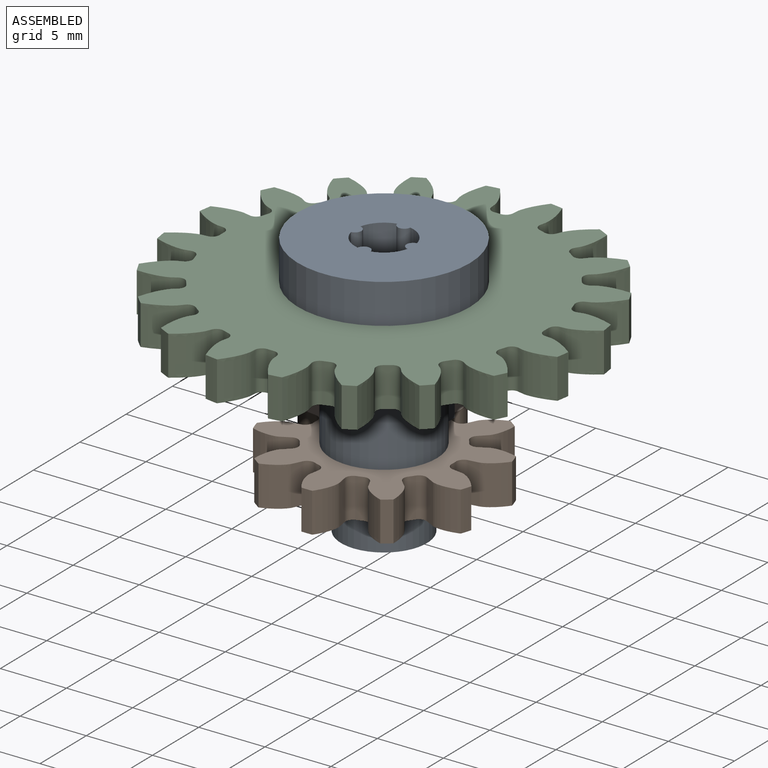
[diagram: assembled view]
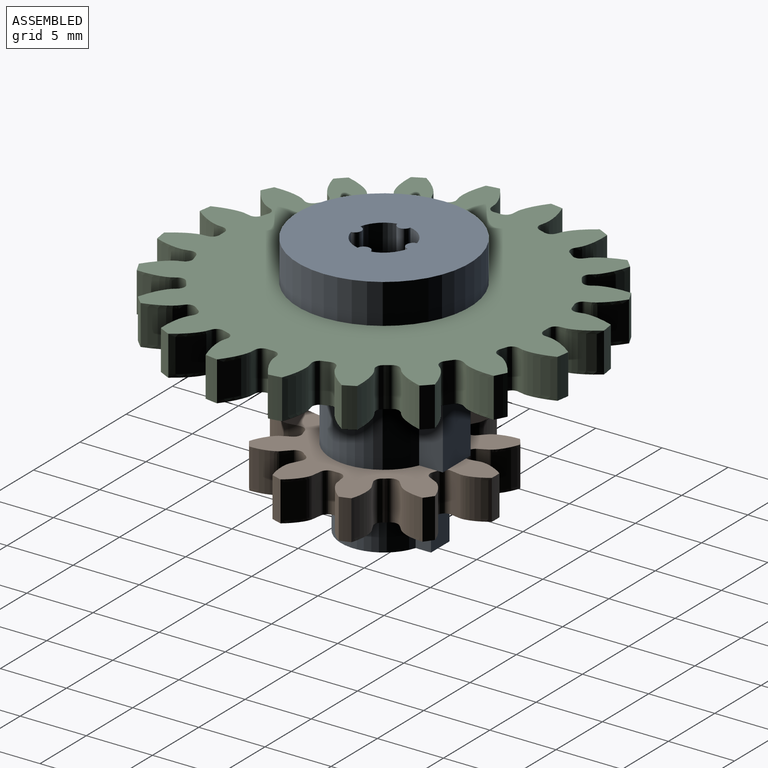
[diagram: assembled view, second angle]
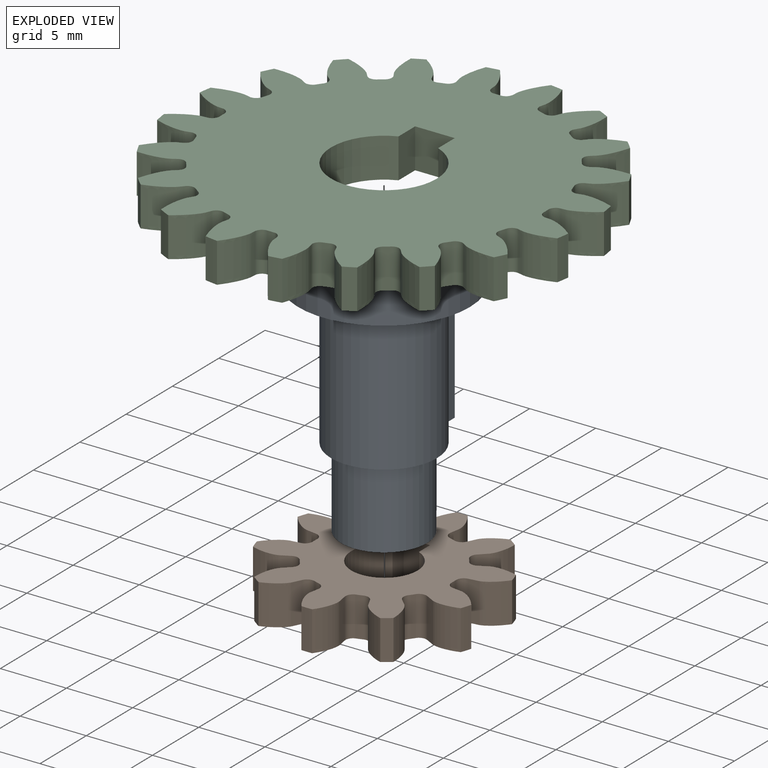
[diagram: exploded view]
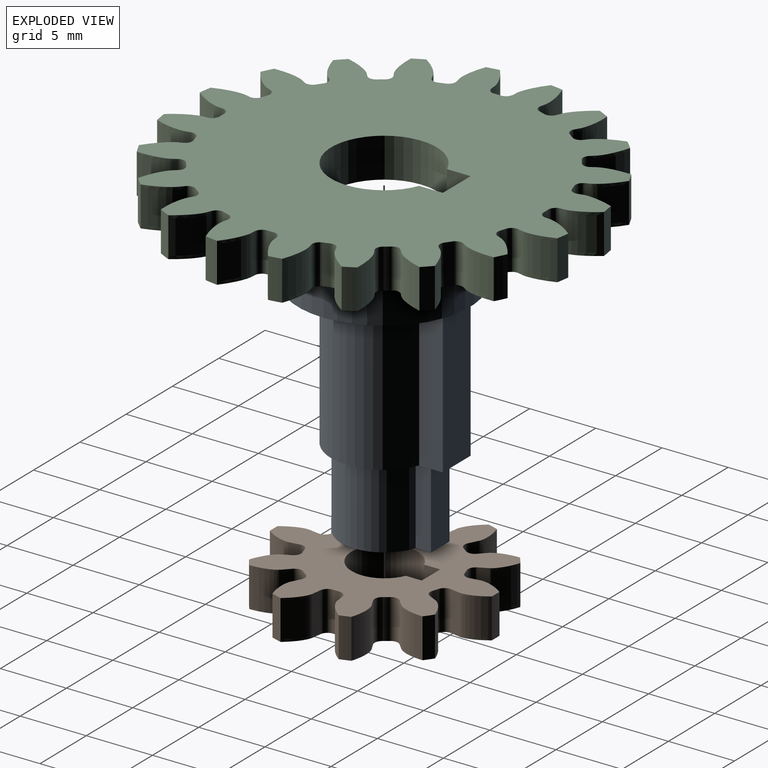
[diagram: exploded view, second angle]
ASSEMBLY  parts=3 mates=2
PART A: 21 faces, bbox 13x13x20 mm
  f0: plane 13x13mm, normal (0,0,1), area 119mm2, adj f8,f13,f14,f15,f16,f17,f18,f19
  f1: plane 7.5x6.5mm, normal (0,0,-1), area 21.6mm2, adj f9,f10,f11,f12,f13,f14,f15,f16
  f2: plane 9.5x8mm, normal (0,0,-1), area 19.8mm2, adj f3,f4,f5,f6,f9,f10,f11,f12
  f3: plane 11x1.79mm, normal (-1,0,0), area 19.7mm2, adj f2,f4,f6,f7
  f4: cylinder r=4mm len=11mm, axis (0,0,-1), area 242.6mm2, adj f2,f3,f5,f7
  f5: plane 11x1.79mm, normal (1,0,0), area 19.7mm2, adj f2,f4,f6,f7
  f6: plane 11x3mm, normal (0,1,0), area 33mm2, adj f2,f3,f5,f7
  f7: plane 13x13mm, normal (0,0,-1), area 77.7mm2, adj f3,f4,f5,f6,f8
  f8: cylinder r=6.5mm len=13mm, axis (0,0,-1), area 122.5mm2, adj f0,f7
  f9: cylinder r=3.25mm len=6.5mm, axis (0,0,1), area 110.3mm2, adj f1,f2,f10,f12
  f10: plane 6x1.16mm, normal (-1,0,0), area 6.9mm2, adj f1,f2,f9,f11
  f11: plane 6x2mm, normal (0,1,0), area 12mm2, adj f1,f2,f10,f12
  f12: plane 6x1.16mm, normal (1,0,0), area 6.9mm2, adj f1,f2,f9,f11
  f13: cylinder r=0.5mm len=20mm, axis (0,0,1), area 29.1mm2, adj f0,f1,f14,f20
  f14: cylinder r=2.2mm len=20mm, axis (0,0,1), area 49.1mm2, adj f0,f1,f13,f15
  f15: cylinder r=0.5mm len=20mm, axis (0,0,1), area 29.1mm2, adj f0,f1,f14,f16
  f16: cylinder r=2.2mm len=20mm, axis (0,0,1), area 49.1mm2, adj f0,f1,f15,f17
  f17: cylinder r=0.5mm len=20mm, axis (0,0,1), area 29.1mm2, adj f0,f1,f16,f18
  f18: cylinder r=2.2mm len=20mm, axis (0,0,1), area 49.1mm2, adj f0,f1,f17,f19
  f19: cylinder r=0.5mm len=20mm, axis (0,0,1), area 29.1mm2, adj f0,f1,f18,f20
  f20: cylinder r=2.2mm len=20mm, axis (0,0,1), area 49.1mm2, adj f0,f1,f13,f19
PART B: 66 faces, bbox 16.2x3x16.8 mm
  f0: cylinder r=8.4mm len=3mm, axis (0,1,0), area 2.5mm2, adj f9,f15,f56,f63
  f1: cylinder r=8.4mm len=3mm, axis (0,1,0), area 2.5mm2, adj f9,f15,f16,f58
  f2: cylinder r=8.4mm len=3mm, axis (0,1,0), area 2.5mm2, adj f9,f15,f46,f53
  f3: cylinder r=8.4mm len=3mm, axis (0,1,0), area 2.5mm2, adj f9,f15,f48,f61
  f4: cylinder r=8.4mm len=3mm, axis (0,1,0), area 2.5mm2, adj f9,f15,f36,f43
  f5: cylinder r=8.4mm len=3mm, axis (0,1,0), area 2.5mm2, adj f9,f15,f31,f38
  f6: cylinder r=8.4mm len=3mm, axis (0,1,0), area 2.5mm2, adj f9,f15,f26,f33
  f7: cylinder r=8.4mm len=3mm, axis (0,1,0), area 2.5mm2, adj f9,f15,f28,f51
  f8: cylinder r=8.4mm len=3mm, axis (0,1,0), area 2.5mm2, adj f9,f15,f23,f41
  f9: plane 16.83x16.25mm, normal (0,-1,0), area 125.5mm2, adj f0,f1,f2,f3,f4,f5,f6,f7
  f10: plane 3x1.21mm, normal (-1,0,0), area 3.6mm2, adj f9,f11,f13,f15
  f11: cylinder r=2.5mm len=5mm, axis (0,1,0), area 41mm2, adj f9,f10,f12,f15
  f12: plane 3x1.21mm, normal (1,0,0), area 3.6mm2, adj f9,f11,f13,f15
  f13: plane 3x2mm, normal (0,0,-1), area 6mm2, adj f9,f10,f12,f15
  f14: cylinder r=8.4mm len=3mm, axis (0,1,0), area 2.5mm2, adj f9,f15,f18,f21
  f15: plane 16.83x16.25mm, normal (0,1,0), area 125.5mm2, adj f0,f1,f2,f3,f4,f5,f6,f7
  f16: extruded ~3x2.37mm, area 8.5mm2, adj f1,f9,f15,f19
  f17: cylinder r=5.25mm len=3mm, axis (0,1,0), area 1.3mm2, adj f9,f15,f19,f20
  f18: extruded ~3x2.37mm, area 8.5mm2, adj f9,f14,f15,f20
  f19: cylinder r=0.58mm len=3mm, axis (0,1,0), area 2.5mm2, adj f9,f15,f16,f17
  f20: cylinder r=0.58mm len=3mm, axis (0,1,0), area 2.5mm2, adj f9,f15,f17,f18
  f21: extruded ~3x2.73mm, area 8.5mm2, adj f9,f14,f15,f24
  f22: cylinder r=5.25mm len=3mm, axis (0,1,0), area 1.3mm2, adj f9,f15,f24,f25
  f23: extruded ~3x2.51mm, area 8.5mm2, adj f8,f9,f15,f25
  f24: cylinder r=0.58mm len=3mm, axis (0,1,0), area 2.5mm2, adj f9,f15,f21,f22
  f25: cylinder r=0.58mm len=3mm, axis (0,1,0), area 2.5mm2, adj f9,f15,f22,f23
  f26: extruded ~3x2.37mm, area 8.5mm2, adj f6,f9,f15,f29
  f27: cylinder r=5.25mm len=3mm, axis (0,1,0), area 1.3mm2, adj f9,f15,f29,f30
  f28: extruded ~3x2.37mm, area 8.5mm2, adj f7,f9,f15,f30
  f29: cylinder r=0.58mm len=3mm, axis (0,1,0), area 2.5mm2, adj f9,f15,f26,f27
  f30: cylinder r=0.58mm len=3mm, axis (0,1,0), area 2.5mm2, adj f9,f15,f27,f28
  f31: extruded ~3x2.51mm, area 8.5mm2, adj f5,f9,f15,f34
  f32: cylinder r=5.25mm len=3mm, axis (0,1,0), area 1.3mm2, adj f9,f15,f34,f35
  f33: extruded ~3x2.73mm, area 8.5mm2, adj f6,f9,f15,f35
  f34: cylinder r=0.58mm len=3mm, axis (0,1,0), area 2.5mm2, adj f9,f15,f31,f32
  f35: cylinder r=0.58mm len=3mm, axis (0,1,0), area 2.5mm2, adj f9,f15,f32,f33
  f36: extruded ~3x2.68mm, area 8.5mm2, adj f4,f9,f15,f39
  f37: cylinder r=5.25mm len=3mm, axis (0,1,0), area 1.3mm2, adj f9,f15,f39,f40
  f38: extruded ~3x2.05mm, area 8.5mm2, adj f5,f9,f15,f40
  f39: cylinder r=0.58mm len=3mm, axis (0,1,0), area 2.5mm2, adj f9,f15,f36,f37
  f40: cylinder r=0.58mm len=3mm, axis (0,1,0), area 2.5mm2, adj f9,f15,f37,f38
  f41: extruded ~3x2.05mm, area 8.5mm2, adj f8,f9,f15,f44
  f42: cylinder r=5.25mm len=3mm, axis (0,1,0), area 1.3mm2, adj f9,f15,f44,f45
  f43: extruded ~3x2.68mm, area 8.5mm2, adj f4,f9,f15,f45
  f44: cylinder r=0.58mm len=3mm, axis (0,1,0), area 2.5mm2, adj f9,f15,f41,f42
  f45: cylinder r=0.58mm len=3mm, axis (0,1,0), area 2.5mm2, adj f9,f15,f42,f43
  f46: extruded ~3x2.05mm, area 8.5mm2, adj f2,f9,f15,f49
  f47: cylinder r=5.25mm len=3mm, axis (0,1,0), area 1.3mm2, adj f9,f15,f49,f50
  f48: extruded ~3x2.68mm, area 8.5mm2, adj f3,f9,f15,f50
  f49: cylinder r=0.58mm len=3mm, axis (0,1,0), area 2.5mm2, adj f9,f15,f46,f47
  f50: cylinder r=0.58mm len=3mm, axis (0,1,0), area 2.5mm2, adj f9,f15,f47,f48
  f51: extruded ~3x2.73mm, area 8.5mm2, adj f7,f9,f15,f54
  f52: cylinder r=5.25mm len=3mm, axis (0,1,0), area 1.3mm2, adj f9,f15,f54,f55
  f53: extruded ~3x2.51mm, area 8.5mm2, adj f2,f9,f15,f55
  f54: cylinder r=0.58mm len=3mm, axis (0,1,0), area 2.5mm2, adj f9,f15,f51,f52
  f55: cylinder r=0.58mm len=3mm, axis (0,1,0), area 2.5mm2, adj f9,f15,f52,f53
  f56: extruded ~3x2.51mm, area 8.5mm2, adj f0,f9,f15,f59
  f57: cylinder r=5.25mm len=3mm, axis (0,1,0), area 1.3mm2, adj f9,f15,f59,f60
  f58: extruded ~3x2.73mm, area 8.5mm2, adj f1,f9,f15,f60
  f59: cylinder r=0.58mm len=3mm, axis (0,1,0), area 2.5mm2, adj f9,f15,f56,f57
  f60: cylinder r=0.58mm len=3mm, axis (0,1,0), area 2.5mm2, adj f9,f15,f57,f58
  f61: extruded ~3x2.68mm, area 8.5mm2, adj f3,f9,f15,f64
  f62: cylinder r=5.25mm len=3mm, axis (0,1,0), area 1.3mm2, adj f9,f15,f64,f65
  f63: extruded ~3x2.05mm, area 8.5mm2, adj f0,f9,f15,f65
  f64: cylinder r=0.58mm len=3mm, axis (0,1,0), area 2.5mm2, adj f9,f15,f61,f62
  f65: cylinder r=0.58mm len=3mm, axis (0,1,0), area 2.5mm2, adj f9,f15,f62,f63
PART C: 126 faces, bbox 30.6x3x30.6 mm
  f0: cylinder r=15.4mm len=3mm, axis (0,1,0), area 2.9mm2, adj f19,f25,f76,f123
  f1: cylinder r=15.4mm len=3mm, axis (0,1,0), area 2.9mm2, adj f19,f25,f118,f121
  f2: cylinder r=15.4mm len=3mm, axis (0,1,0), area 2.9mm2, adj f19,f25,f113,f116
  f3: cylinder r=15.4mm len=3mm, axis (0,1,0), area 2.9mm2, adj f19,f25,f108,f111
  f4: cylinder r=15.4mm len=3mm, axis (0,1,0), area 2.9mm2, adj f19,f25,f103,f106
  f5: cylinder r=15.4mm len=3mm, axis (0,1,0), area 2.9mm2, adj f19,f25,f98,f101
  f6: cylinder r=15.4mm len=3mm, axis (0,1,0), area 2.9mm2, adj f19,f25,f93,f96
  f7: cylinder r=15.4mm len=3mm, axis (0,1,0), area 2.9mm2, adj f19,f25,f88,f91
  f8: cylinder r=15.4mm len=3mm, axis (0,1,0), area 2.9mm2, adj f19,f25,f71,f83
  f9: cylinder r=15.4mm len=3mm, axis (0,1,0), area 2.9mm2, adj f19,f25,f78,f81
  f10: cylinder r=15.4mm len=3mm, axis (0,1,0), area 2.9mm2, adj f19,f25,f66,f73
  f11: cylinder r=15.4mm len=3mm, axis (0,1,0), area 2.9mm2, adj f19,f25,f46,f68
  f12: cylinder r=15.4mm len=3mm, axis (0,1,0), area 2.9mm2, adj f19,f25,f26,f63
  f13: cylinder r=15.4mm len=3mm, axis (0,1,0), area 2.9mm2, adj f19,f25,f58,f61
  f14: cylinder r=15.4mm len=3mm, axis (0,1,0), area 2.9mm2, adj f19,f25,f53,f56
  f15: cylinder r=15.4mm len=3mm, axis (0,1,0), area 2.9mm2, adj f19,f25,f48,f51
  f16: cylinder r=15.4mm len=3mm, axis (0,1,0), area 2.9mm2, adj f19,f25,f36,f43
  f17: cylinder r=15.4mm len=3mm, axis (0,1,0), area 2.9mm2, adj f19,f25,f38,f86
  f18: cylinder r=15.4mm len=3mm, axis (0,1,0), area 2.9mm2, adj f19,f25,f33,f41
  f19: plane 30.58x30.58mm, normal (0,-1,0), area 548.3mm2, adj f0,f1,f2,f3,f4,f5,f6,f7
  f20: plane 3x1.79mm, normal (-1,0,0), area 5.4mm2, adj f19,f21,f23,f25
  f21: cylinder r=4mm len=8mm, axis (0,1,0), area 66.2mm2, adj f19,f20,f22,f25
  f22: plane 3x1.79mm, normal (1,0,0), area 5.4mm2, adj f19,f21,f23,f25
  f23: plane 3x3mm, normal (0,0,-1), area 9mm2, adj f19,f20,f22,f25
  f24: cylinder r=15.4mm len=3mm, axis (0,1,0), area 2.9mm2, adj f19,f25,f28,f31
  f25: plane 30.58x30.58mm, normal (0,1,0), area 548.3mm2, adj f0,f1,f2,f3,f4,f5,f6,f7
  f26: extruded ~3x2.51mm, area 8.4mm2, adj f12,f19,f25,f29
  f27: cylinder r=12.25mm len=3mm, axis (0,1,0), area 1.5mm2, adj f19,f25,f29,f30
  f28: extruded ~3x2.51mm, area 8.4mm2, adj f19,f24,f25,f30
  f29: cylinder r=0.55mm len=3mm, axis (0,1,0), area 2.5mm2, adj f19,f25,f26,f27
  f30: cylinder r=0.55mm len=3mm, axis (0,1,0), area 2.5mm2, adj f19,f25,f27,f28
  f31: extruded ~3x2.73mm, area 8.4mm2, adj f19,f24,f25,f34
  f32: cylinder r=12.25mm len=3mm, axis (0,1,0), area 1.5mm2, adj f19,f25,f34,f35
  f33: extruded ~3x2.04mm, area 8.4mm2, adj f18,f19,f25,f35
  f34: cylinder r=0.55mm len=3mm, axis (0,1,0), area 2.5mm2, adj f19,f25,f31,f32
  f35: cylinder r=0.55mm len=3mm, axis (0,1,0), area 2.5mm2, adj f19,f25,f32,f33
  f36: extruded ~3x2.38mm, area 8.4mm2, adj f16,f19,f25,f39
  f37: cylinder r=12.25mm len=3mm, axis (0,1,0), area 1.5mm2, adj f19,f25,f39,f40
  f38: extruded ~3x2.69mm, area 8.4mm2, adj f17,f19,f25,f40
  f39: cylinder r=0.55mm len=3mm, axis (0,1,0), area 2.5mm2, adj f19,f25,f36,f37
  f40: cylinder r=0.55mm len=3mm, axis (0,1,0), area 2.5mm2, adj f19,f25,f37,f38
  f41: extruded ~3x2.69mm, area 8.4mm2, adj f18,f19,f25,f44
  f42: cylinder r=12.25mm len=3mm, axis (0,1,0), area 1.5mm2, adj f19,f25,f44,f45
  f43: extruded ~3x2.38mm, area 8.4mm2, adj f16,f19,f25,f45
  f44: cylinder r=0.55mm len=3mm, axis (0,1,0), area 2.5mm2, adj f19,f25,f41,f42
  f45: cylinder r=0.55mm len=3mm, axis (0,1,0), area 2.5mm2, adj f19,f25,f42,f43
  f46: extruded ~3x2.73mm, area 8.4mm2, adj f11,f19,f25,f49
  f47: cylinder r=12.25mm len=3mm, axis (0,1,0), area 1.5mm2, adj f19,f25,f49,f50
  f48: extruded ~3x2.04mm, area 8.4mm2, adj f15,f19,f25,f50
  f49: cylinder r=0.55mm len=3mm, axis (0,1,0), area 2.5mm2, adj f19,f25,f46,f47
  f50: cylinder r=0.55mm len=3mm, axis (0,1,0), area 2.5mm2, adj f19,f25,f47,f48
  f51: extruded ~3x2.69mm, area 8.4mm2, adj f15,f19,f25,f54
  f52: cylinder r=12.25mm len=3mm, axis (0,1,0), area 1.5mm2, adj f19,f25,f54,f55
  f53: extruded ~3x2.38mm, area 8.4mm2, adj f14,f19,f25,f55
  f54: cylinder r=0.55mm len=3mm, axis (0,1,0), area 2.5mm2, adj f19,f25,f51,f52
  f55: cylinder r=0.55mm len=3mm, axis (0,1,0), area 2.5mm2, adj f19,f25,f52,f53
  f56: extruded ~3x2.38mm, area 8.4mm2, adj f14,f19,f25,f59
  f57: cylinder r=12.25mm len=3mm, axis (0,1,0), area 1.5mm2, adj f19,f25,f59,f60
  f58: extruded ~3x2.69mm, area 8.4mm2, adj f13,f19,f25,f60
  f59: cylinder r=0.55mm len=3mm, axis (0,1,0), area 2.5mm2, adj f19,f25,f56,f57
  f60: cylinder r=0.55mm len=3mm, axis (0,1,0), area 2.5mm2, adj f19,f25,f57,f58
  f61: extruded ~3x2.04mm, area 8.4mm2, adj f13,f19,f25,f64
  f62: cylinder r=12.25mm len=3mm, axis (0,1,0), area 1.5mm2, adj f19,f25,f64,f65
  f63: extruded ~3x2.73mm, area 8.4mm2, adj f12,f19,f25,f65
  f64: cylinder r=0.55mm len=3mm, axis (0,1,0), area 2.5mm2, adj f19,f25,f61,f62
  f65: cylinder r=0.55mm len=3mm, axis (0,1,0), area 2.5mm2, adj f19,f25,f62,f63
  f66: extruded ~3x2.51mm, area 8.4mm2, adj f10,f19,f25,f69
  f67: cylinder r=12.25mm len=3mm, axis (0,1,0), area 1.5mm2, adj f19,f25,f69,f70
  f68: extruded ~3x2.51mm, area 8.4mm2, adj f11,f19,f25,f70
  f69: cylinder r=0.55mm len=3mm, axis (0,1,0), area 2.5mm2, adj f19,f25,f66,f67
  f70: cylinder r=0.55mm len=3mm, axis (0,1,0), area 2.5mm2, adj f19,f25,f67,f68
  f71: extruded ~3x2.04mm, area 8.4mm2, adj f8,f19,f25,f74
  f72: cylinder r=12.25mm len=3mm, axis (0,1,0), area 1.5mm2, adj f19,f25,f74,f75
  f73: extruded ~3x2.73mm, area 8.4mm2, adj f10,f19,f25,f75
  f74: cylinder r=0.55mm len=3mm, axis (0,1,0), area 2.5mm2, adj f19,f25,f71,f72
  f75: cylinder r=0.55mm len=3mm, axis (0,1,0), area 2.5mm2, adj f19,f25,f72,f73
  f76: extruded ~3x2.69mm, area 8.4mm2, adj f0,f19,f25,f79
  f77: cylinder r=12.25mm len=3mm, axis (0,1,0), area 1.5mm2, adj f19,f25,f79,f80
  f78: extruded ~3x2.38mm, area 8.4mm2, adj f9,f19,f25,f80
  f79: cylinder r=0.55mm len=3mm, axis (0,1,0), area 2.5mm2, adj f19,f25,f76,f77
  f80: cylinder r=0.55mm len=3mm, axis (0,1,0), area 2.5mm2, adj f19,f25,f77,f78
  f81: extruded ~3x2.38mm, area 8.4mm2, adj f9,f19,f25,f84
  f82: cylinder r=12.25mm len=3mm, axis (0,1,0), area 1.5mm2, adj f19,f25,f84,f85
  f83: extruded ~3x2.69mm, area 8.4mm2, adj f8,f19,f25,f85
  f84: cylinder r=0.55mm len=3mm, axis (0,1,0), area 2.5mm2, adj f19,f25,f81,f82
  f85: cylinder r=0.55mm len=3mm, axis (0,1,0), area 2.5mm2, adj f19,f25,f82,f83
  f86: extruded ~3x2.04mm, area 8.4mm2, adj f17,f19,f25,f89
  f87: cylinder r=12.25mm len=3mm, axis (0,1,0), area 1.5mm2, adj f19,f25,f89,f90
  f88: extruded ~3x2.73mm, area 8.4mm2, adj f7,f19,f25,f90
  f89: cylinder r=0.55mm len=3mm, axis (0,1,0), area 2.5mm2, adj f19,f25,f86,f87
  f90: cylinder r=0.55mm len=3mm, axis (0,1,0), area 2.5mm2, adj f19,f25,f87,f88
  f91: extruded ~3x2.51mm, area 8.4mm2, adj f7,f19,f25,f94
  f92: cylinder r=12.25mm len=3mm, axis (0,1,0), area 1.5mm2, adj f19,f25,f94,f95
  f93: extruded ~3x2.51mm, area 8.4mm2, adj f6,f19,f25,f95
  f94: cylinder r=0.55mm len=3mm, axis (0,1,0), area 2.5mm2, adj f19,f25,f91,f92
  f95: cylinder r=0.55mm len=3mm, axis (0,1,0), area 2.5mm2, adj f19,f25,f92,f93
  f96: extruded ~3x2.73mm, area 8.4mm2, adj f6,f19,f25,f99
  f97: cylinder r=12.25mm len=3mm, axis (0,1,0), area 1.5mm2, adj f19,f25,f99,f100
  f98: extruded ~3x2.04mm, area 8.4mm2, adj f5,f19,f25,f100
  f99: cylinder r=0.55mm len=3mm, axis (0,1,0), area 2.5mm2, adj f19,f25,f96,f97
  f100: cylinder r=0.55mm len=3mm, axis (0,1,0), area 2.5mm2, adj f19,f25,f97,f98
  f101: extruded ~3x2.69mm, area 8.4mm2, adj f5,f19,f25,f104
  f102: cylinder r=12.25mm len=3mm, axis (0,1,0), area 1.5mm2, adj f19,f25,f104,f105
  f103: extruded ~3x2.38mm, area 8.4mm2, adj f4,f19,f25,f105
  f104: cylinder r=0.55mm len=3mm, axis (0,1,0), area 2.5mm2, adj f19,f25,f101,f102
  f105: cylinder r=0.55mm len=3mm, axis (0,1,0), area 2.5mm2, adj f19,f25,f102,f103
  f106: extruded ~3x2.38mm, area 8.4mm2, adj f4,f19,f25,f109
  f107: cylinder r=12.25mm len=3mm, axis (0,1,0), area 1.5mm2, adj f19,f25,f109,f110
  f108: extruded ~3x2.69mm, area 8.4mm2, adj f3,f19,f25,f110
  f109: cylinder r=0.55mm len=3mm, axis (0,1,0), area 2.5mm2, adj f19,f25,f106,f107
  f110: cylinder r=0.55mm len=3mm, axis (0,1,0), area 2.5mm2, adj f19,f25,f107,f108
  f111: extruded ~3x2.04mm, area 8.4mm2, adj f3,f19,f25,f114
  f112: cylinder r=12.25mm len=3mm, axis (0,1,0), area 1.5mm2, adj f19,f25,f114,f115
  f113: extruded ~3x2.73mm, area 8.4mm2, adj f2,f19,f25,f115
  f114: cylinder r=0.55mm len=3mm, axis (0,1,0), area 2.5mm2, adj f19,f25,f111,f112
  f115: cylinder r=0.55mm len=3mm, axis (0,1,0), area 2.5mm2, adj f19,f25,f112,f113
  f116: extruded ~3x2.51mm, area 8.4mm2, adj f2,f19,f25,f119
  f117: cylinder r=12.25mm len=3mm, axis (0,1,0), area 1.5mm2, adj f19,f25,f119,f120
  f118: extruded ~3x2.51mm, area 8.4mm2, adj f1,f19,f25,f120
  f119: cylinder r=0.55mm len=3mm, axis (0,1,0), area 2.5mm2, adj f19,f25,f116,f117
  f120: cylinder r=0.55mm len=3mm, axis (0,1,0), area 2.5mm2, adj f19,f25,f117,f118
  f121: extruded ~3x2.73mm, area 8.4mm2, adj f1,f19,f25,f124
  f122: cylinder r=12.25mm len=3mm, axis (0,1,0), area 1.5mm2, adj f19,f25,f124,f125
  f123: extruded ~3x2.04mm, area 8.4mm2, adj f0,f19,f25,f125
  f124: cylinder r=0.55mm len=3mm, axis (0,1,0), area 2.5mm2, adj f19,f25,f121,f122
  f125: cylinder r=0.55mm len=3mm, axis (0,1,0), area 2.5mm2, adj f19,f25,f122,f123
PLACE A at identity fixed
PLACE B rot(axis=(0,0.71,0.71),180deg) t=(0,0.05,0)mm
PLACE C rot(axis=(-1,0,0),90deg) t=(0,0,8)mm
MATE fastened A.f4 <-> B.f15  axis (0,0,-1) through (0,0,0)mm
MATE fastened C.f0 <-> A.f4  axis (0,0,-1) through (0,0,11)mm
